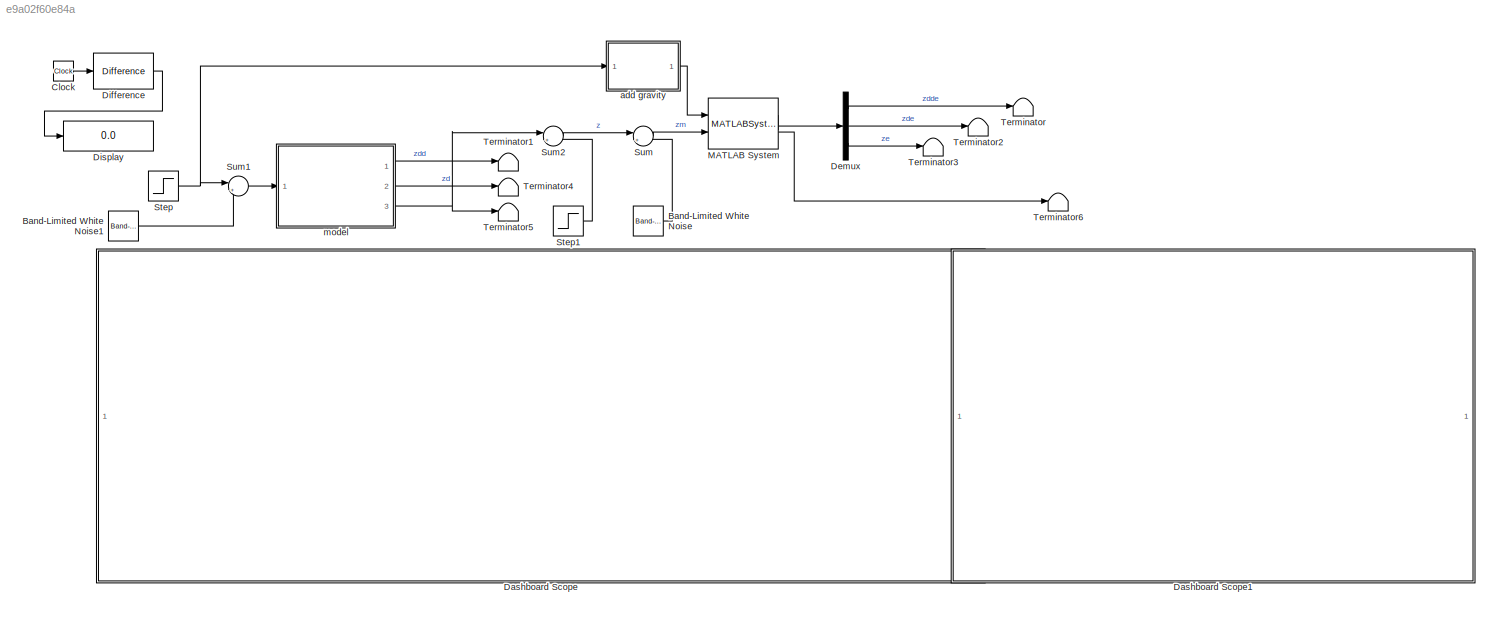
MODEL slx_e9a02f60e84a
KIND model
CONFIG AbsTol = auto
CONFIG EnableMultiTasking = off
CONFIG FixedStep = 0.1
CONFIG MaxStep = auto
CONFIG MinStep = auto
CONFIG RelTol = 1e-3
CONFIG SampleTimeConstraint = Unconstrained
CONFIG Solver = FixedStepAuto
CONFIG SolverName = FixedStepAuto
CONFIG StartTime = 0.0
CONFIG StopTime = 10
BLOCK [Reference] Band-Limited White Noise  REF=simulink/Sources/Band-Limited
White Noise
  Ports = [0, 1]
  SourceBlock = simulink/Sources/Band-Limited\nWhite Noise
  SourceProductBaseCode = SL
  SourceProductName = Simulink
  SourceType = Band-Limited White Noise.
BLOCK [Reference] Band-Limited White Noise1  REF=simulink/Sources/Band-Limited
White Noise
  Ports = [0, 1]
  SourceBlock = simulink/Sources/Band-Limited\nWhite Noise
  SourceProductBaseCode = SL
  SourceProductName = Simulink
  SourceType = Band-Limited White Noise.
BLOCK [Clock] Clock
BLOCK [SubSystem] Dashboard Scope
  DialogController = hmiCreateDDGDialog
  IsWebBlock = on
  MaskHideContents = on
  Ports = []
  RequestExecContextInheritance = off
  Variant = off
BLOCK [SubSystem] Dashboard Scope1
  DialogController = hmiCreateDDGDialog
  IsWebBlock = on
  MaskHideContents = on
  Ports = []
  RequestExecContextInheritance = off
  Variant = off
BLOCK [Demux] Demux
  DisplayOption = bar
  Outputs = 3
  Ports = [1, 3]
BLOCK [Reference] Difference  REF=simulink/Discrete/Difference
  Ports = [1, 1]
  SourceBlock = simulink/Discrete/Difference
  SourceProductBaseCode = SL
  SourceProductName = Simulink
  SourceType = Difference
BLOCK [Display] Display
  Decimation = 1
  Ports = [1]
BLOCK [MATLABSystem] MATLAB System
  MaskDisplay = disp('kalman');\nport_label('input',1,'u');\nport_label('input',2,'z');\nport_label('output',1,'xe');\nport_label('output',2,'P');
  MaskType = kalman
  Ports = [2, 2]
  SimulateUsing = Interpreted execution
  System = kalman
BLOCK [Step] Step
  After = 25
  SampleTime = 0
  Time = 3
BLOCK [Step] Step1
  After = 110.0
  SampleTime = 0
  Time = 6
BLOCK [Sum] Sum
  IconShape = round
  InputSameDT = off
  Inputs = |++
  OutDataTypeStr = Inherit: Inherit via internal rule
  Ports = [2, 1]
  SaturateOnIntegerOverflow = off
BLOCK [Sum] Sum1
  IconShape = round
  InputSameDT = off
  Inputs = |++
  OutDataTypeStr = Inherit: Inherit via internal rule
  Ports = [2, 1]
  SaturateOnIntegerOverflow = off
BLOCK [Sum] Sum2
  IconShape = round
  InputSameDT = off
  Inputs = |++
  OutDataTypeStr = Inherit: Inherit via internal rule
  Ports = [2, 1]
  SaturateOnIntegerOverflow = off
BLOCK [Terminator] Terminator
BLOCK [Terminator] Terminator1
BLOCK [Terminator] Terminator2
BLOCK [Terminator] Terminator3
BLOCK [Terminator] Terminator4
BLOCK [Terminator] Terminator5
BLOCK [Terminator] Terminator6
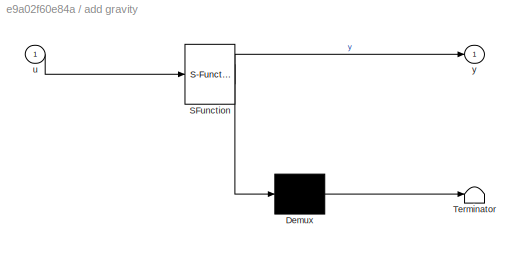
BLOCK [SubSystem] add gravity
  ErrorFcn = Stateflow.Translate.translate
  PermitHierarchicalResolution = ExplicitOnly
  Ports = [1, 1]
  RequestExecContextInheritance = off
  SFBlockType = MATLAB Function
  TreatAsAtomicUnit = on
  Variant = off
BLOCK [Demux] add gravity/ Demux 
  Outputs = 1
  Ports = [1, 1]
BLOCK [S-Function] add gravity/ SFunction 
  EnableBusSupport = on
  FunctionName = sf_sfun
  PortCounts = [1 2]
  Ports = [1, 2]
  SFcnIsStateOwnerBlock = off
  SFunctionDeploymentMode = off
  Tag = Stateflow S-Function kalman_point_mass_1d 2
BLOCK [Terminator] add gravity/ Terminator 
BLOCK [Inport] add gravity/u
  IconDisplay = Port number
BLOCK [Outport] add gravity/y
  IconDisplay = Port number
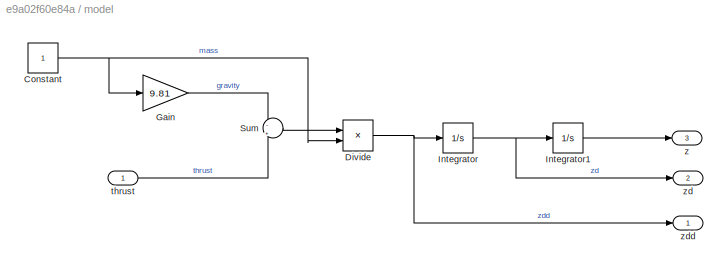
BLOCK [SubSystem] model
  Ports = [1, 3]
  RequestExecContextInheritance = off
  Variant = off
BLOCK [Constant] model/Constant
BLOCK [Product] model/Divide
  InputSameDT = off
  Inputs = */
  OutDataTypeStr = Inherit: Inherit via internal rule
  Ports = [2, 1]
  RndMeth = Floor
  SaturateOnIntegerOverflow = off
BLOCK [Gain] model/Gain
  Gain = 9.81
  OutDataTypeStr = Inherit: Inherit via internal rule
  ParamDataTypeStr = Inherit: Inherit via internal rule
  SaturateOnIntegerOverflow = off
BLOCK [Integrator] model/Integrator
  Ports = [1, 1]
BLOCK [Integrator] model/Integrator1
  InitialCondition = 5
  Ports = [1, 1]
BLOCK [Sum] model/Sum
  IconShape = round
  InputSameDT = off
  Inputs = -|+
  OutDataTypeStr = Inherit: Inherit via internal rule
  Ports = [2, 1]
  SaturateOnIntegerOverflow = off
BLOCK [Inport] model/thrust
  IconDisplay = Port number
BLOCK [Outport] model/z
  IconDisplay = Port number
  Port = 3
BLOCK [Outport] model/zd
  IconDisplay = Port number
  Port = 2
BLOCK [Outport] model/zdd
  IconDisplay = Port number
LINE Band-Limited White Noise1:1 -> Sum1:2
LINE Band-Limited White Noise:1 -> Sum:2
LINE Clock:1 -> Difference:1
LINE Demux:1 -> Terminator:1
LINE Demux:2 -> Terminator2:1
LINE Demux:3 -> Terminator3:1
LINE Difference:1 -> Display:1
LINE MATLAB System:1 -> Demux:1
LINE MATLAB System:2 -> Terminator6:1
LINE Step1:1 -> Sum2:2
NET Step:1 -> Sum1:1, add gravity:1
LINE Sum1:1 -> model:1
LINE Sum2:1 -> Sum:1
LINE Sum:1 -> MATLAB System:2
LINE add gravity:1 -> MATLAB System:1
NET model/Constant:1 -> model/Divide:2, model/Gain:1
NET model/Divide:1 -> model/Integrator:1, model/zdd:1
LINE model/Gain:1 -> model/Sum:1
LINE model/Integrator1:1 -> model/z:1
NET model/Integrator:1 -> model/Integrator1:1, model/zd:1
LINE model/Sum:1 -> model/Divide:1
LINE model/thrust:1 -> model/Sum:2
LINE model:1 -> Terminator1:1
LINE model:2 -> Terminator4:1
NET model:3 -> Sum2:1, Terminator5:1
note: NET lines group one-source signal fan-out (src -> all destinations, sorted); 1:1 wires keep LINE
CHART add gravity states=1 transitions=1
  STATE_LABEL 'eML_blk_kernel()'
  STATE_LABEL 'SCRIPT:\nfunction y = fcn(u)\nmass = 1;\nF = u - mass*9.81;\ny = F/mass;\n'
